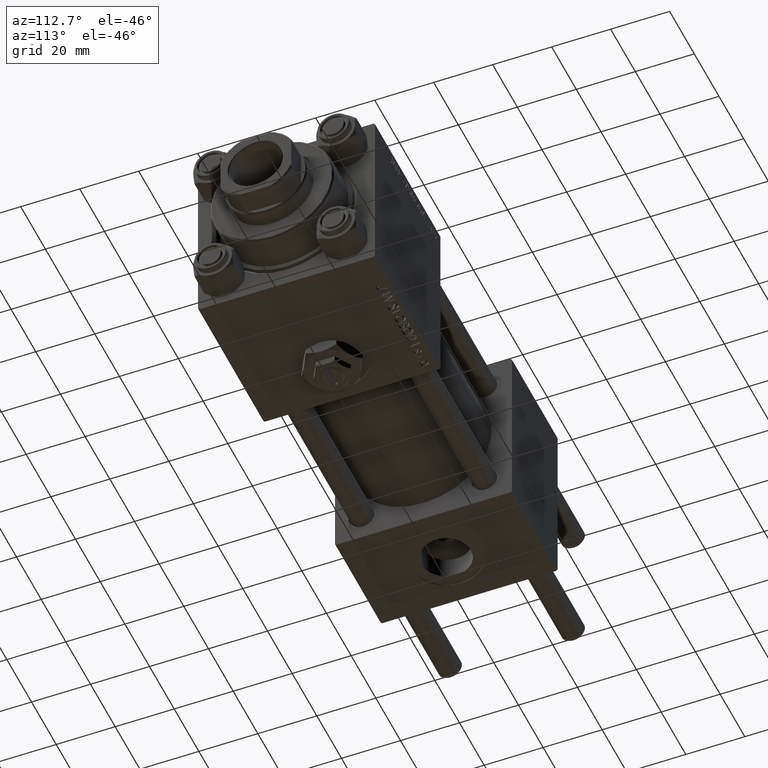
[diagram: clean part render]
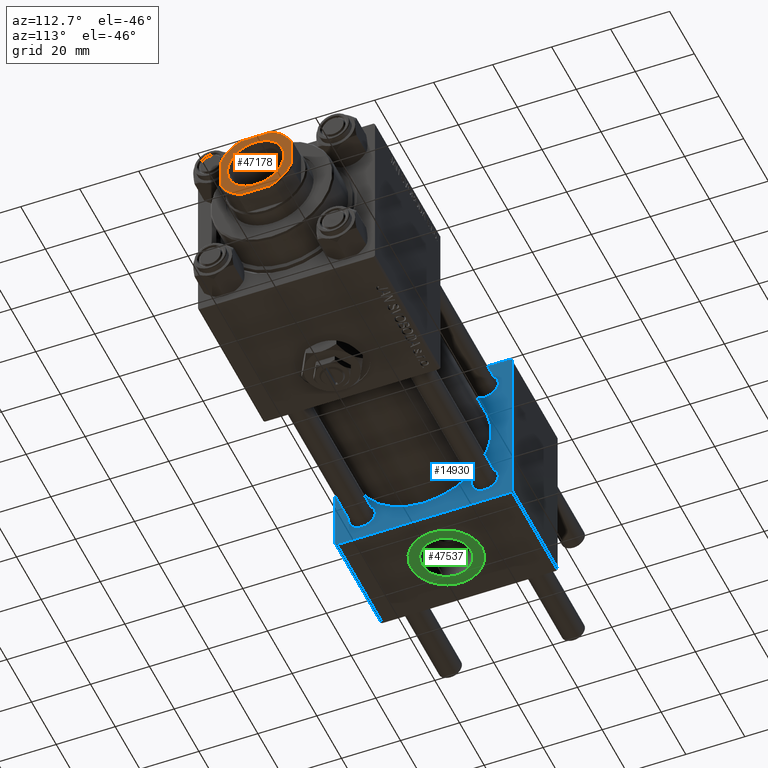
[diagram: same view with three faces highlighted in distinct colors, each labeled with its STEP entity id]
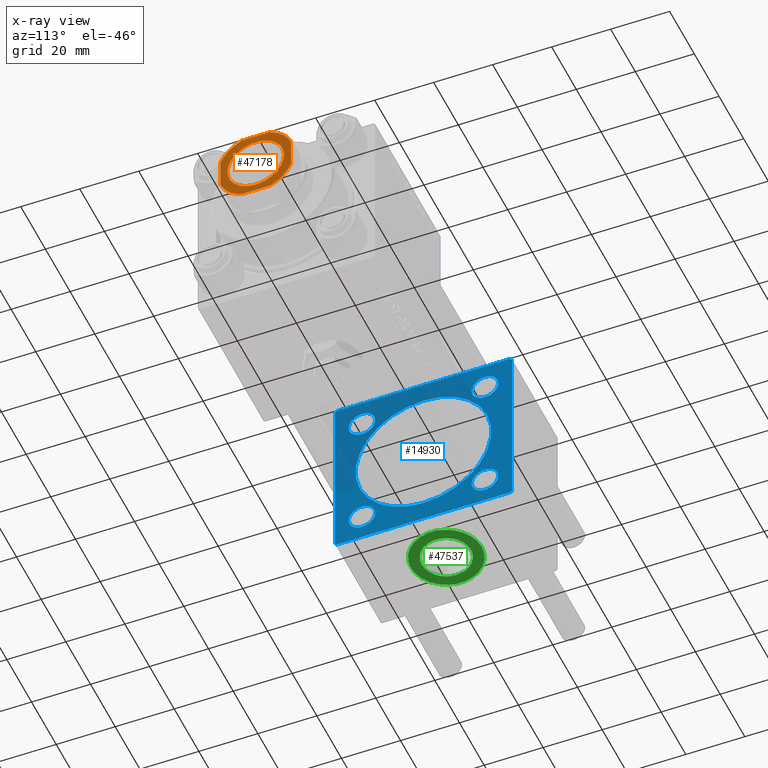
[diagram: x-ray of the same camera — body ghosted, the three highlighted faces saturated]
A machine part, auxiliary view with three faces highlighted in distinct colors.
The next image is the same camera in x-ray (body ghosted, the three faces saturated) — at least one of them is partly hidden behind the body in this view.
Their STEP definitions:

[orange] entity #47178 — the highlighted planar face has unit normal (1, 0, -0).
#717 = DIRECTION ( 'NONE',  ( -0.000000000000000000, 0.000000000000000000, 1.000000000000000000 ) ) ;
#975 = DIRECTION ( 'NONE',  ( -0.000000000000000000, 0.000000000000000000, 1.000000000000000000 ) ) ;
#1299 = EDGE_CURVE ( 'NONE', #12302, #9664, #51068, .T. ) ;
#1761 = CARTESIAN_POINT ( 'NONE',  ( 0.000000000000000000, 0.000000000000000000, 136.0000000000000000 ) ) ;
#2345 = CARTESIAN_POINT ( 'NONE',  ( -12.00000000000000000, 11.99999999999999645, 136.0000000000000000 ) ) ;
#2412 = CARTESIAN_POINT ( 'NONE',  ( 0.000000000000000000, 0.000000000000000000, 136.0000000000000000 ) ) ;
#2589 = ORIENTED_EDGE ( 'NONE', *, *, #46346, .T. ) ;
#3003 = CARTESIAN_POINT ( 'NONE',  ( -5.000000000000031086, -12.00000000000000355, 136.0000000000000000 ) ) ;
#5885 = CIRCLE ( 'NONE', #41948, 9.549999999999975842 ) ;
#6234 = ORIENTED_EDGE ( 'NONE', *, *, #29414, .T. ) ;
#6340 = CARTESIAN_POINT ( 'NONE',  ( 0.000000000000000000, 0.000000000000000000, 136.0000000000000000 ) ) ;
#6436 = CARTESIAN_POINT ( 'NONE',  ( 11.99999999999999645, 11.99999999999999645, 136.0000000000000000 ) ) ;
#7103 = VECTOR ( 'NONE', #15543, 1000.000000000000000 ) ;
#7525 = ORIENTED_EDGE ( 'NONE', *, *, #1299, .T. ) ;
#7549 = VERTEX_POINT ( 'NONE', #16993 ) ;
#7751 = CARTESIAN_POINT ( 'NONE',  ( -12.00000000000000000, 11.99999999999999645, 136.0000000000000000 ) ) ;
#8195 = EDGE_CURVE ( 'NONE', #21591, #7549, #12600, .T. ) ;
#9664 = VERTEX_POINT ( 'NONE', #3003 ) ;
#9806 = DIRECTION ( 'NONE',  ( -0.000000000000000000, 0.000000000000000000, 1.000000000000000000 ) ) ;
#10486 = CIRCLE ( 'NONE', #44870, 12.99999999999999289 ) ;
#10646 = ORIENTED_EDGE ( 'NONE', *, *, #14841, .T. ) ;
#11868 = VERTEX_POINT ( 'NONE', #41121 ) ;
#12302 = VERTEX_POINT ( 'NONE', #50482 ) ;
#12600 = CIRCLE ( 'NONE', #45319, 13.00000000000002309 ) ;
#14145 = AXIS2_PLACEMENT_3D ( 'NONE', #36187, #717, #24366 ) ;
#14228 = DIRECTION ( 'NONE',  ( 1.000000000000000000, 0.000000000000000000, 0.000000000000000000 ) ) ;
#14841 = EDGE_CURVE ( 'NONE', #18206, #46799, #5885, .T. ) ;
#15375 = LINE ( 'NONE', #7751, #24049 ) ;
#15543 = DIRECTION ( 'NONE',  ( -2.891205793294678326E-16, 1.000000000000000000, -0.000000000000000000 ) ) ;
#16658 = AXIS2_PLACEMENT_3D ( 'NONE', #30888, #38001, #34314 ) ;
#16993 = CARTESIAN_POINT ( 'NONE',  ( 12.00000000000000178, -5.000000000000056843, 136.0000000000000000 ) ) ;
#17343 = DIRECTION ( 'NONE',  ( 1.000000000000000000, 0.000000000000000000, 0.000000000000000000 ) ) ;
#17359 = AXIS2_PLACEMENT_3D ( 'NONE', #6340, #42578, #43340 ) ;
#17731 = CARTESIAN_POINT ( 'NONE',  ( 0.000000000000000000, 0.000000000000000000, 136.0000000000000000 ) ) ;
#17759 = ORIENTED_EDGE ( 'NONE', *, *, #28023, .T. ) ;
#18206 = VERTEX_POINT ( 'NONE', #25651 ) ;
#18401 = AXIS2_PLACEMENT_3D ( 'NONE', #2412, #50198, #14228 ) ;
#19160 = CARTESIAN_POINT ( 'NONE',  ( 5.000000000000042633, 11.99999999999999645, 136.0000000000000000 ) ) ;
#20607 = CARTESIAN_POINT ( 'NONE',  ( 5.000000000000053291, -12.00000000000000355, 136.0000000000000000 ) ) ;
#20717 = ORIENTED_EDGE ( 'NONE', *, *, #38710, .T. ) ;
#21591 = VERTEX_POINT ( 'NONE', #20607 ) ;
#23995 = VERTEX_POINT ( 'NONE', #48164 ) ;
#24049 = VECTOR ( 'NONE', #36108, 1000.000000000000000 ) ;
#24366 = DIRECTION ( 'NONE',  ( 1.000000000000000000, 0.000000000000000000, 0.000000000000000000 ) ) ;
#25651 = CARTESIAN_POINT ( 'NONE',  ( 9.549999999999975842, 0.000000000000000000, 136.0000000000000000 ) ) ;
#25935 = DIRECTION ( 'NONE',  ( 1.000000000000000000, 0.000000000000000000, 0.000000000000000000 ) ) ;
#26561 = PLANE ( 'NONE',  #17359 ) ;
#26978 = ORIENTED_EDGE ( 'NONE', *, *, #34275, .T. ) ;
#27324 = FACE_OUTER_BOUND ( 'NONE', #51148, .T. ) ;
#28023 = EDGE_CURVE ( 'NONE', #9664, #21591, #33094, .T. ) ;
#28679 = EDGE_CURVE ( 'NONE', #7549, #23995, #51501, .T. ) ;
#29235 = CARTESIAN_POINT ( 'NONE',  ( -12.00000000000000000, 4.999999999999979572, 136.0000000000000000 ) ) ;
#29414 = EDGE_CURVE ( 'NONE', #11868, #30789, #10486, .T. ) ;
#30027 = VERTEX_POINT ( 'NONE', #19160 ) ;
#30329 = DIRECTION ( 'NONE',  ( 0.000000000000000000, -0.000000000000000000, -1.000000000000000000 ) ) ;
#30578 = VECTOR ( 'NONE', #17343, 1000.000000000000000 ) ;
#30789 = VERTEX_POINT ( 'NONE', #29235 ) ;
#30888 = CARTESIAN_POINT ( 'NONE',  ( 0.000000000000000000, 0.000000000000000000, 136.0000000000000000 ) ) ;
#33094 = LINE ( 'NONE', #49890, #30578 ) ;
#34024 = EDGE_LOOP ( 'NONE', ( #10646, #44083 ) ) ;
#34275 = EDGE_CURVE ( 'NONE', #30789, #12302, #15375, .T. ) ;
#34314 = DIRECTION ( 'NONE',  ( 1.000000000000000000, 0.000000000000000000, 0.000000000000000000 ) ) ;
#36108 = DIRECTION ( 'NONE',  ( 7.228014483236695816E-17, -1.000000000000000000, 0.000000000000000000 ) ) ;
#36187 = CARTESIAN_POINT ( 'NONE',  ( 0.000000000000000000, 0.000000000000000000, 136.0000000000000000 ) ) ;
#36790 = CIRCLE ( 'NONE', #14145, 13.00000000000001243 ) ;
#38001 = DIRECTION ( 'NONE',  ( 0.000000000000000000, -0.000000000000000000, -1.000000000000000000 ) ) ;
#38167 = CARTESIAN_POINT ( 'NONE',  ( 0.000000000000000000, 0.000000000000000000, 136.0000000000000000 ) ) ;
#38189 = CARTESIAN_POINT ( 'NONE',  ( -9.549999999999975842, 1.169537693185719205E-15, 136.0000000000000000 ) ) ;
#38710 = EDGE_CURVE ( 'NONE', #23995, #30027, #36790, .T. ) ;
#39102 = LINE ( 'NONE', #2345, #43292 ) ;
#40390 = ORIENTED_EDGE ( 'NONE', *, *, #8195, .T. ) ;
#41121 = CARTESIAN_POINT ( 'NONE',  ( -4.999999999999987566, 11.99999999999999645, 136.0000000000000000 ) ) ;
#41886 = EDGE_CURVE ( 'NONE', #46799, #18206, #49338, .T. ) ;
#41948 = AXIS2_PLACEMENT_3D ( 'NONE', #17731, #30329, #49492 ) ;
#42578 = DIRECTION ( 'NONE',  ( -0.000000000000000000, 0.000000000000000000, 1.000000000000000000 ) ) ;
#43089 = FACE_BOUND ( 'NONE', #34024, .T. ) ;
#43292 = VECTOR ( 'NONE', #46973, 1000.000000000000000 ) ;
#43340 = DIRECTION ( 'NONE',  ( 1.000000000000000000, 0.000000000000000000, 0.000000000000000000 ) ) ;
#44083 = ORIENTED_EDGE ( 'NONE', *, *, #41886, .T. ) ;
#44870 = AXIS2_PLACEMENT_3D ( 'NONE', #38167, #9806, #45770 ) ;
#45319 = AXIS2_PLACEMENT_3D ( 'NONE', #1761, #975, #25935 ) ;
#45770 = DIRECTION ( 'NONE',  ( 1.000000000000000000, 0.000000000000000000, 0.000000000000000000 ) ) ;
#46346 = EDGE_CURVE ( 'NONE', #30027, #11868, #39102, .T. ) ;
#46799 = VERTEX_POINT ( 'NONE', #38189 ) ;
#46973 = DIRECTION ( 'NONE',  ( -1.000000000000000000, -0.000000000000000000, -0.000000000000000000 ) ) ;
#47178 = ADVANCED_FACE ( 'NONE', ( #43089, #27324 ), #26561, .T. ) ;
#48164 = CARTESIAN_POINT ( 'NONE',  ( 11.99999999999999822, 5.000000000000037303, 136.0000000000000000 ) ) ;
#49144 = ORIENTED_EDGE ( 'NONE', *, *, #28679, .T. ) ;
#49338 = CIRCLE ( 'NONE', #16658, 9.549999999999975842 ) ;
#49492 = DIRECTION ( 'NONE',  ( 1.000000000000000000, 0.000000000000000000, 0.000000000000000000 ) ) ;
#49890 = CARTESIAN_POINT ( 'NONE',  ( -11.99999999999999822, -12.00000000000000355, 136.0000000000000000 ) ) ;
#50198 = DIRECTION ( 'NONE',  ( -0.000000000000000000, 0.000000000000000000, 1.000000000000000000 ) ) ;
#50482 = CARTESIAN_POINT ( 'NONE',  ( -12.00000000000000000, -5.000000000000039968, 136.0000000000000000 ) ) ;
#51068 = CIRCLE ( 'NONE', #18401, 13.00000000000001421 ) ;
#51148 = EDGE_LOOP ( 'NONE', ( #49144, #20717, #2589, #6234, #26978, #7525, #17759, #40390 ) ) ;
#51501 = LINE ( 'NONE', #6436, #7103 ) ;

[blue] entity #14930 — the highlighted planar face has unit normal (-1, 0, 0).
#5 = AXIS2_PLACEMENT_3D ( 'NONE', #21671, #22448, #37691 ) ;
#280 = DIRECTION ( 'NONE',  ( -1.000000000000000000, 0.000000000000000000, -0.000000000000000000 ) ) ;
#976 = EDGE_CURVE ( 'NONE', #23292, #36473, #15838, .T. ) ;
#1314 = DIRECTION ( 'NONE',  ( 0.000000000000000000, -0.7071067811865474617, 0.7071067811865474617 ) ) ;
#1503 = VECTOR ( 'NONE', #50586, 1000.000000000000000 ) ;
#1558 = CARTESIAN_POINT ( 'NONE',  ( 37.00000000000000000, -20.84999999999999076, -16.35000000000001208 ) ) ;
#1592 = ORIENTED_EDGE ( 'NONE', *, *, #976, .T. ) ;
#1616 = DIRECTION ( 'NONE',  ( -1.000000000000000000, 0.000000000000000000, -0.000000000000000000 ) ) ;
#1671 = DIRECTION ( 'NONE',  ( -0.000000000000000000, 0.7071067811865574537, 0.7071067811865376918 ) ) ;
#1876 = CIRCLE ( 'NONE', #22853, 4.499999999999990230 ) ;
#2415 = AXIS2_PLACEMENT_3D ( 'NONE', #18512, #14801, #30833 ) ;
#2579 = CARTESIAN_POINT ( 'NONE',  ( 37.00000000000000000, -29.49999999999998579, 29.99999999999999289 ) ) ;
#2601 = AXIS2_PLACEMENT_3D ( 'NONE', #24051, #36129, #36384 ) ;
#2722 = CARTESIAN_POINT ( 'NONE',  ( 37.00000000000000000, -20.84999999999999076, 16.35000000000001208 ) ) ;
#3157 = CARTESIAN_POINT ( 'NONE',  ( 37.00000000000000000, -20.84999999999999076, 25.34999999999999432 ) ) ;
#3324 = CARTESIAN_POINT ( 'NONE',  ( 37.00000000000000000, -30.00000000000000000, 29.49999999999999289 ) ) ;
#3518 = AXIS2_PLACEMENT_3D ( 'NONE', #10023, #1616, #26045 ) ;
#3533 = VERTEX_POINT ( 'NONE', #23465 ) ;
#3646 = CARTESIAN_POINT ( 'NONE',  ( 37.00000000000000000, 20.84999999999999787, 16.35000000000001208 ) ) ;
#3677 = DIRECTION ( 'NONE',  ( 1.000000000000000000, -0.000000000000000000, 0.000000000000000000 ) ) ;
#3990 = CARTESIAN_POINT ( 'NONE',  ( 37.00000000000000000, 29.99999999999999289, 30.00000000000000000 ) ) ;
#4000 = CARTESIAN_POINT ( 'NONE',  ( 37.00000000000000000, -30.00000000000000000, 29.99999999999999289 ) ) ;
#4155 = EDGE_CURVE ( 'NONE', #8357, #33102, #29370, .T. ) ;
#4250 = LINE ( 'NONE', #3990, #27880 ) ;
#4422 = ORIENTED_EDGE ( 'NONE', *, *, #17924, .T. ) ;
#5526 = AXIS2_PLACEMENT_3D ( 'NONE', #23125, #3677, #14712 ) ;
#6060 = ORIENTED_EDGE ( 'NONE', *, *, #10088, .T. ) ;
#6358 = EDGE_LOOP ( 'NONE', ( #45793, #51758 ) ) ;
#7748 = ORIENTED_EDGE ( 'NONE', *, *, #20094, .F. ) ;
#8357 = VERTEX_POINT ( 'NONE', #47163 ) ;
#8425 = CARTESIAN_POINT ( 'NONE',  ( 37.00000000000000000, 20.84999999999999787, -20.85000000000000142 ) ) ;
#8492 = EDGE_CURVE ( 'NONE', #26578, #49121, #31089, .T. ) ;
#8640 = CARTESIAN_POINT ( 'NONE',  ( 37.00000000000000000, 20.84999999999999787, -25.34999999999999076 ) ) ;
#8676 = CARTESIAN_POINT ( 'NONE',  ( 37.00000000000000000, 29.49999999999999289, 30.00000000000000000 ) ) ;
#8695 = DIRECTION ( 'NONE',  ( -1.000000000000000000, 0.000000000000000000, -0.000000000000000000 ) ) ;
#9097 = EDGE_CURVE ( 'NONE', #18542, #18975, #43615, .T. ) ;
#9131 = EDGE_CURVE ( 'NONE', #3533, #48600, #20497, .T. ) ;
#9291 = DIRECTION ( 'NONE',  ( 0.000000000000000000, 0.000000000000000000, 1.000000000000000000 ) ) ;
#9332 = CIRCLE ( 'NONE', #16866, 4.499999999999990230 ) ;
#10023 = CARTESIAN_POINT ( 'NONE',  ( 37.00000000000000000, -20.84999999999999076, -20.85000000000000497 ) ) ;
#10088 = EDGE_CURVE ( 'NONE', #48600, #16964, #39950, .T. ) ;
#10397 = ORIENTED_EDGE ( 'NONE', *, *, #19036, .T. ) ;
#11021 = EDGE_CURVE ( 'NONE', #16581, #23493, #22817, .T. ) ;
#11385 = DIRECTION ( 'NONE',  ( -0.000000000000000000, 0.000000000000000000, 1.000000000000000000 ) ) ;
#12091 = AXIS2_PLACEMENT_3D ( 'NONE', #46687, #51141, #30939 ) ;
#12432 = EDGE_CURVE ( 'NONE', #49121, #26578, #1876, .T. ) ;
#12911 = CIRCLE ( 'NONE', #16257, 4.499999999999990230 ) ;
#13297 = CARTESIAN_POINT ( 'NONE',  ( 37.00000000000000000, -30.00000000000000000, 29.49999999999999289 ) ) ;
#13328 = ORIENTED_EDGE ( 'NONE', *, *, #16741, .T. ) ;
#13490 = LINE ( 'NONE', #42114, #48744 ) ;
#13548 = DIRECTION ( 'NONE',  ( -1.000000000000000000, 0.000000000000000000, -0.000000000000000000 ) ) ;
#13551 = CARTESIAN_POINT ( 'NONE',  ( 37.00000000000000000, 29.99999999999999289, -29.50000000000000000 ) ) ;
#14282 = CARTESIAN_POINT ( 'NONE',  ( 37.00000000000000000, -30.00000000000000000, -29.50000000000001776 ) ) ;
#14709 = CARTESIAN_POINT ( 'NONE',  ( 37.00000000000000000, -20.84999999999999076, 20.85000000000000497 ) ) ;
#14712 = DIRECTION ( 'NONE',  ( 0.000000000000000000, 0.000000000000000000, 1.000000000000000000 ) ) ;
#14801 = DIRECTION ( 'NONE',  ( -1.000000000000000000, 0.000000000000000000, -0.000000000000000000 ) ) ;
#14930 = ADVANCED_FACE ( 'NONE', ( #35027, #51039, #43163, #47617, #31347, #15069 ), #31094, .F. ) ;
#15069 = FACE_OUTER_BOUND ( 'NONE', #51764, .T. ) ;
#15277 = ORIENTED_EDGE ( 'NONE', *, *, #9097, .T. ) ;
#15753 = ORIENTED_EDGE ( 'NONE', *, *, #17562, .T. ) ;
#15838 = CIRCLE ( 'NONE', #2415, 4.499999999999990230 ) ;
#16257 = AXIS2_PLACEMENT_3D ( 'NONE', #29315, #13548, #17763 ) ;
#16581 = VERTEX_POINT ( 'NONE', #27698 ) ;
#16741 = EDGE_CURVE ( 'NONE', #36473, #23292, #9332, .T. ) ;
#16866 = AXIS2_PLACEMENT_3D ( 'NONE', #14709, #45251, #9291 ) ;
#16964 = VERTEX_POINT ( 'NONE', #2579 ) ;
#17100 = DIRECTION ( 'NONE',  ( 0.000000000000000000, 0.000000000000000000, 1.000000000000000000 ) ) ;
#17372 = VERTEX_POINT ( 'NONE', #13551 ) ;
#17562 = EDGE_CURVE ( 'NONE', #44091, #17372, #13490, .T. ) ;
#17763 = DIRECTION ( 'NONE',  ( 0.000000000000000000, 0.000000000000000000, 1.000000000000000000 ) ) ;
#17774 = VECTOR ( 'NONE', #28925, 1000.000000000000000 ) ;
#17924 = EDGE_CURVE ( 'NONE', #23900, #18542, #43908, .T. ) ;
#18512 = CARTESIAN_POINT ( 'NONE',  ( 37.00000000000000000, -20.84999999999999076, 20.85000000000000497 ) ) ;
#18542 = VERTEX_POINT ( 'NONE', #14282 ) ;
#18858 = VECTOR ( 'NONE', #51360, 1000.000000000000114 ) ;
#18975 = VERTEX_POINT ( 'NONE', #46247 ) ;
#19036 = EDGE_CURVE ( 'NONE', #19325, #20329, #34573, .T. ) ;
#19325 = VERTEX_POINT ( 'NONE', #1558 ) ;
#19880 = ORIENTED_EDGE ( 'NONE', *, *, #12432, .T. ) ;
#19993 = DIRECTION ( 'NONE',  ( 0.000000000000000000, -1.000000000000000000, -1.156482317317871725E-16 ) ) ;
#20094 = EDGE_CURVE ( 'NONE', #3533, #17372, #4250, .T. ) ;
#20329 = VERTEX_POINT ( 'NONE', #51455 ) ;
#20497 = LINE ( 'NONE', #8676, #48691 ) ;
#21671 = CARTESIAN_POINT ( 'NONE',  ( 37.00000000000000000, 0.000000000000000000, 0.000000000000000000 ) ) ;
#22360 = ORIENTED_EDGE ( 'NONE', *, *, #9131, .T. ) ;
#22448 = DIRECTION ( 'NONE',  ( 1.000000000000000000, -0.000000000000000000, 0.000000000000000000 ) ) ;
#22817 = CIRCLE ( 'NONE', #48758, 4.499999999999990230 ) ;
#22853 = AXIS2_PLACEMENT_3D ( 'NONE', #34620, #8695, #17100 ) ;
#22962 = EDGE_CURVE ( 'NONE', #20329, #19325, #12911, .T. ) ;
#23125 = CARTESIAN_POINT ( 'NONE',  ( 37.00000000000000000, 0.000000000000000000, 0.000000000000000000 ) ) ;
#23292 = VERTEX_POINT ( 'NONE', #3157 ) ;
#23465 = CARTESIAN_POINT ( 'NONE',  ( 37.00000000000000000, 29.99999999999999289, 29.50000000000000000 ) ) ;
#23493 = VERTEX_POINT ( 'NONE', #8640 ) ;
#23733 = EDGE_CURVE ( 'NONE', #23493, #16581, #37252, .T. ) ;
#23900 = VERTEX_POINT ( 'NONE', #13297 ) ;
#24051 = CARTESIAN_POINT ( 'NONE',  ( 37.00000000000000000, 20.84999999999999787, 20.85000000000000142 ) ) ;
#24263 = CARTESIAN_POINT ( 'NONE',  ( 37.00000000000000000, 20.84999999999999787, 25.34999999999999076 ) ) ;
#25155 = EDGE_CURVE ( 'NONE', #16964, #23900, #43490, .T. ) ;
#26045 = DIRECTION ( 'NONE',  ( 0.000000000000000000, 0.000000000000000000, 1.000000000000000000 ) ) ;
#26396 = EDGE_LOOP ( 'NONE', ( #13328, #1592 ) ) ;
#26578 = VERTEX_POINT ( 'NONE', #24263 ) ;
#26587 = ORIENTED_EDGE ( 'NONE', *, *, #37662, .F. ) ;
#27698 = CARTESIAN_POINT ( 'NONE',  ( 37.00000000000000000, 20.84999999999999787, -16.35000000000001208 ) ) ;
#27880 = VECTOR ( 'NONE', #49124, 1000.000000000000000 ) ;
#28925 = DIRECTION ( 'NONE',  ( 0.000000000000000000, 0.000000000000000000, -1.000000000000000000 ) ) ;
#29315 = CARTESIAN_POINT ( 'NONE',  ( 37.00000000000000000, -20.84999999999999076, -20.85000000000000497 ) ) ;
#29370 = CIRCLE ( 'NONE', #5, 23.00000000000000000 ) ;
#29444 = ORIENTED_EDGE ( 'NONE', *, *, #22962, .T. ) ;
#29910 = CARTESIAN_POINT ( 'NONE',  ( 37.00000000000000000, 29.49999999999997868, -30.00000000000000000 ) ) ;
#30384 = LINE ( 'NONE', #46388, #1503 ) ;
#30421 = CARTESIAN_POINT ( 'NONE',  ( 37.00000000000000000, 0.000000000000000000, 23.00000000000000000 ) ) ;
#30697 = CIRCLE ( 'NONE', #5526, 23.00000000000000000 ) ;
#30833 = DIRECTION ( 'NONE',  ( 0.000000000000000000, 0.000000000000000000, 1.000000000000000000 ) ) ;
#30939 = DIRECTION ( 'NONE',  ( 0.000000000000000000, 0.000000000000000000, 1.000000000000000000 ) ) ;
#31089 = CIRCLE ( 'NONE', #2601, 4.499999999999990230 ) ;
#31094 = PLANE ( 'NONE',  #34453 ) ;
#31347 = FACE_BOUND ( 'NONE', #6358, .T. ) ;
#31662 = CARTESIAN_POINT ( 'NONE',  ( 37.00000000000000000, 29.49999999999999289, 30.00000000000000000 ) ) ;
#31942 = VECTOR ( 'NONE', #47552, 1000.000000000000114 ) ;
#32124 = EDGE_CURVE ( 'NONE', #33102, #8357, #30697, .T. ) ;
#33102 = VERTEX_POINT ( 'NONE', #30421 ) ;
#34453 = AXIS2_PLACEMENT_3D ( 'NONE', #50781, #35290, #11385 ) ;
#34573 = CIRCLE ( 'NONE', #3518, 4.499999999999990230 ) ;
#34620 = CARTESIAN_POINT ( 'NONE',  ( 37.00000000000000000, 20.84999999999999787, 20.85000000000000142 ) ) ;
#35027 = FACE_BOUND ( 'NONE', #46537, .T. ) ;
#35290 = DIRECTION ( 'NONE',  ( -1.000000000000000000, 0.000000000000000000, -0.000000000000000000 ) ) ;
#35485 = CARTESIAN_POINT ( 'NONE',  ( 37.00000000000000000, -29.50000000000001066, -30.00000000000000711 ) ) ;
#36129 = DIRECTION ( 'NONE',  ( -1.000000000000000000, 0.000000000000000000, -0.000000000000000000 ) ) ;
#36384 = DIRECTION ( 'NONE',  ( 0.000000000000000000, 0.000000000000000000, 1.000000000000000000 ) ) ;
#36473 = VERTEX_POINT ( 'NONE', #2722 ) ;
#36748 = ORIENTED_EDGE ( 'NONE', *, *, #8492, .T. ) ;
#37252 = CIRCLE ( 'NONE', #12091, 4.499999999999990230 ) ;
#37662 = EDGE_CURVE ( 'NONE', #44091, #18975, #30384, .T. ) ;
#37691 = DIRECTION ( 'NONE',  ( 0.000000000000000000, 0.000000000000000000, 1.000000000000000000 ) ) ;
#39950 = LINE ( 'NONE', #51747, #41208 ) ;
#41208 = VECTOR ( 'NONE', #19993, 1000.000000000000000 ) ;
#42114 = CARTESIAN_POINT ( 'NONE',  ( 37.00000000000000000, 29.99999999999999289, -29.50000000000000000 ) ) ;
#43163 = FACE_BOUND ( 'NONE', #26396, .T. ) ;
#43490 = LINE ( 'NONE', #3324, #18858 ) ;
#43615 = LINE ( 'NONE', #35485, #31942 ) ;
#43908 = LINE ( 'NONE', #4000, #17774 ) ;
#44091 = VERTEX_POINT ( 'NONE', #29910 ) ;
#44136 = DIRECTION ( 'NONE',  ( 0.000000000000000000, 0.000000000000000000, 1.000000000000000000 ) ) ;
#44236 = ORIENTED_EDGE ( 'NONE', *, *, #25155, .T. ) ;
#45251 = DIRECTION ( 'NONE',  ( -1.000000000000000000, 0.000000000000000000, -0.000000000000000000 ) ) ;
#45793 = ORIENTED_EDGE ( 'NONE', *, *, #32124, .F. ) ;
#46048 = EDGE_LOOP ( 'NONE', ( #48608, #48597 ) ) ;
#46247 = CARTESIAN_POINT ( 'NONE',  ( 37.00000000000000000, -29.50000000000000000, -30.00000000000000711 ) ) ;
#46388 = CARTESIAN_POINT ( 'NONE',  ( 37.00000000000000000, 29.99999999999999289, -30.00000000000000000 ) ) ;
#46537 = EDGE_LOOP ( 'NONE', ( #29444, #10397 ) ) ;
#46687 = CARTESIAN_POINT ( 'NONE',  ( 37.00000000000000000, 20.84999999999999787, -20.85000000000000142 ) ) ;
#47163 = CARTESIAN_POINT ( 'NONE',  ( 37.00000000000000000, 2.816687638038911957E-15, -23.00000000000000000 ) ) ;
#47552 = DIRECTION ( 'NONE',  ( 0.000000000000000000, 0.7071067811865474617, -0.7071067811865474617 ) ) ;
#47617 = FACE_BOUND ( 'NONE', #50938, .T. ) ;
#48597 = ORIENTED_EDGE ( 'NONE', *, *, #11021, .T. ) ;
#48600 = VERTEX_POINT ( 'NONE', #31662 ) ;
#48608 = ORIENTED_EDGE ( 'NONE', *, *, #23733, .T. ) ;
#48691 = VECTOR ( 'NONE', #1314, 1000.000000000000114 ) ;
#48744 = VECTOR ( 'NONE', #1671, 999.9999999999998863 ) ;
#48758 = AXIS2_PLACEMENT_3D ( 'NONE', #8425, #280, #44136 ) ;
#49121 = VERTEX_POINT ( 'NONE', #3646 ) ;
#49124 = DIRECTION ( 'NONE',  ( 0.000000000000000000, 0.000000000000000000, -1.000000000000000000 ) ) ;
#50586 = DIRECTION ( 'NONE',  ( 0.000000000000000000, -1.000000000000000000, -1.156482317317871725E-16 ) ) ;
#50781 = CARTESIAN_POINT ( 'NONE',  ( 37.00000000000000000, 0.000000000000000000, 0.000000000000000000 ) ) ;
#50938 = EDGE_LOOP ( 'NONE', ( #19880, #36748 ) ) ;
#51039 = FACE_BOUND ( 'NONE', #46048, .T. ) ;
#51141 = DIRECTION ( 'NONE',  ( -1.000000000000000000, 0.000000000000000000, -0.000000000000000000 ) ) ;
#51360 = DIRECTION ( 'NONE',  ( -0.000000000000000000, -0.7071067811865474617, -0.7071067811865474617 ) ) ;
#51455 = CARTESIAN_POINT ( 'NONE',  ( 37.00000000000000000, -20.84999999999999076, -25.34999999999999432 ) ) ;
#51747 = CARTESIAN_POINT ( 'NONE',  ( 37.00000000000000000, 29.99999999999999289, 30.00000000000000000 ) ) ;
#51758 = ORIENTED_EDGE ( 'NONE', *, *, #4155, .F. ) ;
#51764 = EDGE_LOOP ( 'NONE', ( #26587, #15753, #7748, #22360, #6060, #44236, #4422, #15277 ) ) ;

[green] entity #47537 — the highlighted planar face has unit normal (0, -0, -1).
#420 = EDGE_CURVE ( 'NONE', #10976, #7091, #26753, .T. ) ;
#4396 = DIRECTION ( 'NONE',  ( 0.000000000000000000, 1.000000000000000000, -1.734723475976806848E-16 ) ) ;
#4914 = DIRECTION ( 'NONE',  ( 0.000000000000000000, -1.734723475976806848E-16, -1.000000000000000000 ) ) ;
#4917 = AXIS2_PLACEMENT_3D ( 'NONE', #13317, #4914, #37220 ) ;
#6158 = CARTESIAN_POINT ( 'NONE',  ( 18.50000000000000000, 12.00000000000000178, -29.80000000000000782 ) ) ;
#6458 = DIRECTION ( 'NONE',  ( 0.000000000000000000, -1.734723475976806848E-16, -1.000000000000000000 ) ) ;
#7091 = VERTEX_POINT ( 'NONE', #34179 ) ;
#7684 = EDGE_LOOP ( 'NONE', ( #32643, #41049 ) ) ;
#7824 = FACE_BOUND ( 'NONE', #7684, .T. ) ;
#8021 = CIRCLE ( 'NONE', #49094, 8.330000000000000071 ) ;
#8030 = VERTEX_POINT ( 'NONE', #34712 ) ;
#8643 = CIRCLE ( 'NONE', #19561, 12.00000000000000178 ) ;
#8945 = CARTESIAN_POINT ( 'NONE',  ( 18.50000000000000000, 2.998417865195210640E-16, -29.80000000000000426 ) ) ;
#10976 = VERTEX_POINT ( 'NONE', #37304 ) ;
#10990 = CARTESIAN_POINT ( 'NONE',  ( 18.50000000000000000, 2.998417865195211133E-16, -29.80000000000000426 ) ) ;
#12438 = CIRCLE ( 'NONE', #29202, 12.00000000000000178 ) ;
#13317 = CARTESIAN_POINT ( 'NONE',  ( 18.50000000000000000, 2.998417865195211133E-16, -29.80000000000000426 ) ) ;
#16070 = ORIENTED_EDGE ( 'NONE', *, *, #50982, .T. ) ;
#19561 = AXIS2_PLACEMENT_3D ( 'NONE', #31385, #6458, #22491 ) ;
#19646 = PLANE ( 'NONE',  #44188 ) ;
#20165 = FACE_OUTER_BOUND ( 'NONE', #32516, .T. ) ;
#20888 = EDGE_CURVE ( 'NONE', #8030, #45661, #8643, .T. ) ;
#22491 = DIRECTION ( 'NONE',  ( 0.000000000000000000, 1.000000000000000000, -2.891205793294677833E-16 ) ) ;
#23751 = ORIENTED_EDGE ( 'NONE', *, *, #20888, .T. ) ;
#23847 = CARTESIAN_POINT ( 'NONE',  ( 18.50000000000000000, 2.998417865195210640E-16, -29.80000000000000426 ) ) ;
#26753 = CIRCLE ( 'NONE', #4917, 8.330000000000000071 ) ;
#27005 = DIRECTION ( 'NONE',  ( 0.000000000000000000, 1.000000000000000000, 0.000000000000000000 ) ) ;
#29202 = AXIS2_PLACEMENT_3D ( 'NONE', #8945, #32582, #40458 ) ;
#31385 = CARTESIAN_POINT ( 'NONE',  ( 18.50000000000000000, 2.998417865195210640E-16, -29.80000000000000426 ) ) ;
#32516 = EDGE_LOOP ( 'NONE', ( #16070, #23751 ) ) ;
#32582 = DIRECTION ( 'NONE',  ( 0.000000000000000000, -1.734723475976806848E-16, -1.000000000000000000 ) ) ;
#32643 = ORIENTED_EDGE ( 'NONE', *, *, #420, .F. ) ;
#34179 = CARTESIAN_POINT ( 'NONE',  ( 18.50000000000000000, -8.330000000000000071, -29.80000000000000426 ) ) ;
#34712 = CARTESIAN_POINT ( 'NONE',  ( 18.50000000000000000, -12.00000000000000178, -29.80000000000000071 ) ) ;
#37220 = DIRECTION ( 'NONE',  ( 0.000000000000000000, 1.000000000000000000, 0.000000000000000000 ) ) ;
#37304 = CARTESIAN_POINT ( 'NONE',  ( 18.50000000000000000, 8.330000000000000071, -29.80000000000000426 ) ) ;
#39345 = DIRECTION ( 'NONE',  ( 0.000000000000000000, -1.734723475976806848E-16, -1.000000000000000000 ) ) ;
#40458 = DIRECTION ( 'NONE',  ( 0.000000000000000000, 1.000000000000000000, -2.891205793294677833E-16 ) ) ;
#41049 = ORIENTED_EDGE ( 'NONE', *, *, #44281, .F. ) ;
#44188 = AXIS2_PLACEMENT_3D ( 'NONE', #23847, #51409, #4396 ) ;
#44281 = EDGE_CURVE ( 'NONE', #7091, #10976, #8021, .T. ) ;
#45661 = VERTEX_POINT ( 'NONE', #6158 ) ;
#47537 = ADVANCED_FACE ( 'NONE', ( #7824, #20165 ), #19646, .T. ) ;
#49094 = AXIS2_PLACEMENT_3D ( 'NONE', #10990, #39345, #27005 ) ;
#50982 = EDGE_CURVE ( 'NONE', #45661, #8030, #12438, .T. ) ;
#51409 = DIRECTION ( 'NONE',  ( 0.000000000000000000, -1.734723475976806848E-16, -1.000000000000000000 ) ) ;